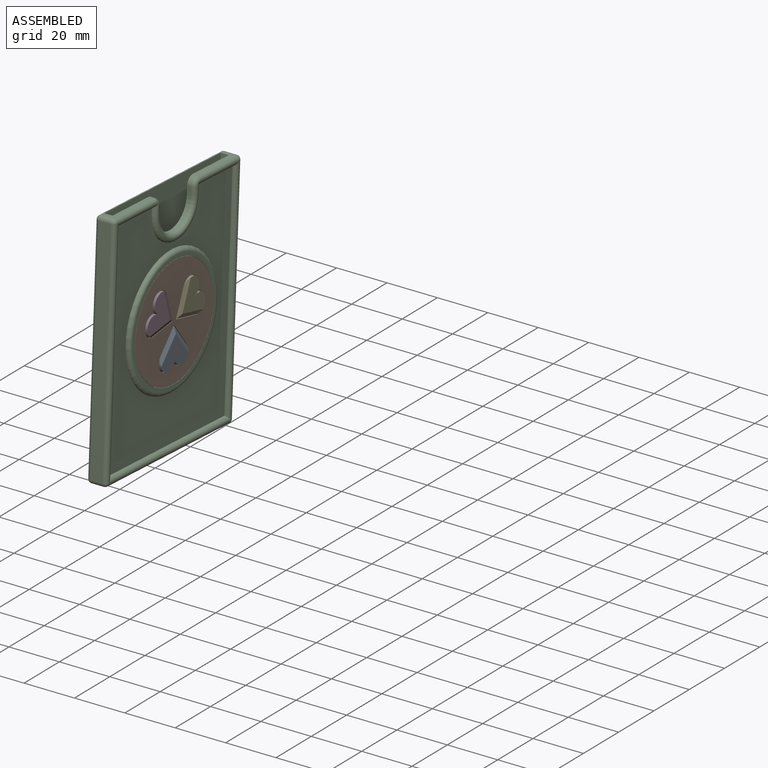
[diagram: assembled view]
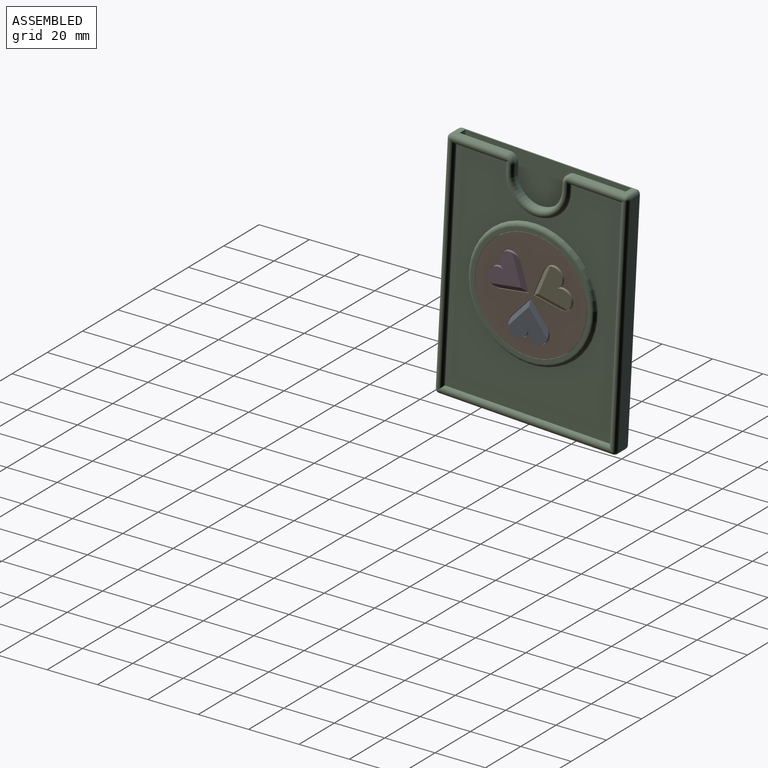
[diagram: assembled view, second angle]
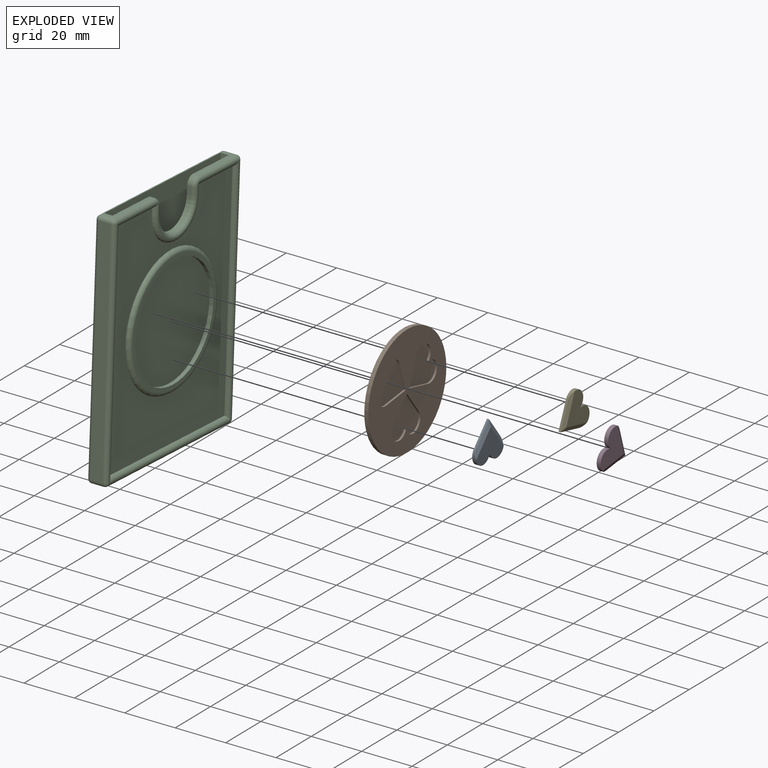
[diagram: exploded view]
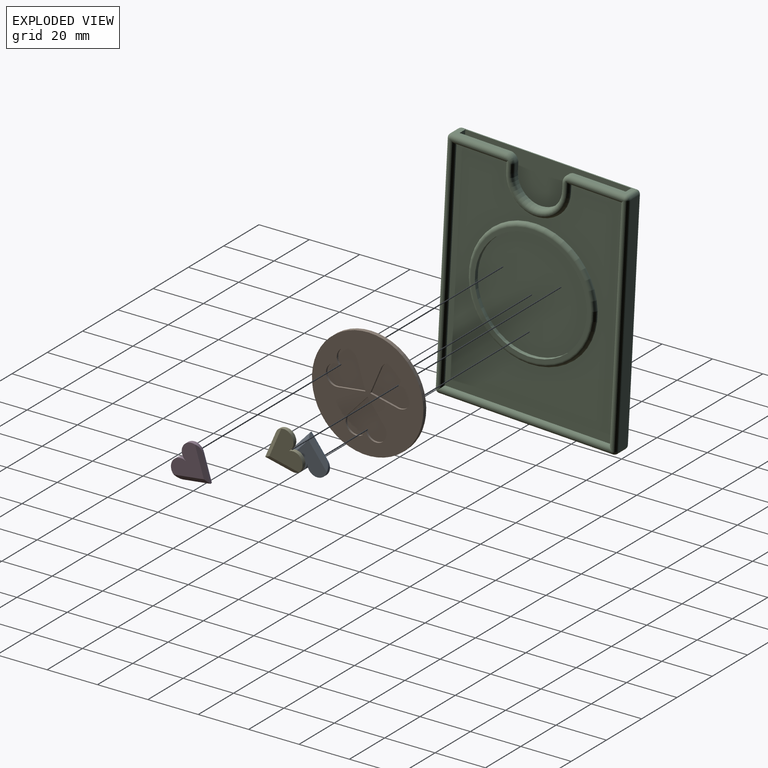
[diagram: exploded view, second angle]
ASSEMBLY  parts=5 mates=4
PART A: 8 faces, bbox 15.8x14.8x1.6 mm
  f0: plane 8.29x6.95mm, normal (-0.77,-0.64,0), area 8.6mm2, adj f1,f3,f5,f7
  f1: plane 8.29x6.95mm, normal (0.77,-0.64,0), area 8.6mm2, adj f0,f2,f5,f6
  f2: cylinder r=3.94mm len=7.88mm, axis (0,0,-1), area 21.7mm2, adj f1,f3,f4,f5,f6
  f3: cylinder r=3.94mm len=7.88mm, axis (0,0,-1), area 21.7mm2, adj f0,f2,f4,f5,f7
  f4: plane 15.54x12.3mm, normal (0,0,1), area 106.5mm2, adj f2,f3,f6,f7
  f5: plane 15.75x14.77mm, normal (0,0,-1), area 144.9mm2, adj f0,f1,f2,f3
  f6: plane 11.73x7.88mm, normal (0.34,-0.29,0.89), area 21.4mm2, adj f1,f2,f4,f7
  f7: plane 11.73x7.88mm, normal (-0.34,-0.29,0.89), area 21.4mm2, adj f0,f3,f4,f6
PART B: 18 faces, bbox 44.2x44.2x1.6 mm
  f0: plane 8.47x7.11mm, normal (-0.77,0.64,0), area 8.8mm2, adj f1,f12,f13,f15
  f1: plane 8.47x7.11mm, normal (0.77,0.64,0), area 8.8mm2, adj f0,f2,f13,f15
  f2: cylinder r=4.15mm len=8.08mm, axis (0,0,-1), area 11.6mm2, adj f1,f12,f13,f15
  f3: plane 10.89x1.92mm, normal (-0.17,-0.98,0), area 8.8mm2, adj f4,f9,f13,f17
  f4: plane 10.39x3.78mm, normal (-0.94,0.34,0), area 8.8mm2, adj f3,f5,f13,f17
  f5: cylinder r=4.15mm len=8.04mm, axis (0,0,-1), area 11.6mm2, adj f4,f9,f13,f17
  f6: plane 10.39x3.78mm, normal (0.94,0.34,0), area 8.8mm2, adj f7,f10,f13,f16
  f7: plane 10.89x1.92mm, normal (0.17,-0.98,0), area 8.8mm2, adj f6,f8,f13,f16
  f8: cylinder r=4.15mm len=8.29mm, axis (0,0,-1), area 11.6mm2, adj f7,f10,f13,f16
  f9: cylinder r=4.15mm len=8.29mm, axis (0,0,-1), area 11.6mm2, adj f3,f5,f13,f17
  f10: cylinder r=4.15mm len=8.04mm, axis (0,0,-1), area 11.6mm2, adj f6,f8,f13,f16
  f11: cylinder r=22.12mm len=44.25mm, axis (0,0,-1), area 220.7mm2, adj f13,f14
  f12: cylinder r=4.15mm len=8.08mm, axis (0,0,-1), area 11.6mm2, adj f0,f2,f13,f15
  f13: plane 44.25x44.25mm, normal (0,0,1), area 1071.7mm2, adj f0,f1,f2,f3,f4,f5,f6,f7
  f14: plane 44.25x44.25mm, normal (0,0,-1), area 1537.6mm2, adj f11
  f15: plane 16.16x15.28mm, normal (0,0,1), area 155.3mm2, adj f0,f1,f2,f12
  f16: plane 15.76x15.11mm, normal (0,0,1), area 155.3mm2, adj f6,f7,f8,f10
  f17: plane 15.76x15.11mm, normal (0,0,1), area 155.3mm2, adj f3,f4,f5,f9
PART C: 55 faces, bbox 72.3x7.9x94.8 mm
  f0: plane 91.37x65.96mm, normal (0,1,0), area 5744.7mm2, adj f1,f6,f7,f9,f11,f12,f13,f14
  f1: plane 21.87x4.76mm, normal (0,0,1), area 39.8mm2, adj f0,f7,f14,f16,f25,f42
  f2: plane 88.2x65.96mm, normal (0,-1,0), area 3456.9mm2, adj f24,f25,f27,f29,f31,f32,f35,f36
  f3: cylinder r=22.23mm len=44.45mm, axis (0,1,0), area 221.7mm2, adj f4,f5
  f4: plane 47.63x47.63mm, normal (0,-1,0), area 229.6mm2, adj f3,f24
  f5: plane 44.45x44.45mm, normal (0,-1,0), area 1551.8mm2, adj f3
  f6: plane 65.96x3.18mm, normal (0,0,1), area 209.4mm2, adj f0,f7,f8,f9
  f7: plane 91.37x3.18mm, normal (-1,0,0), area 290.1mm2, adj f0,f1,f6,f8
  f8: plane 91.37x65.96mm, normal (0,-1,0), area 6012.5mm2, adj f6,f7,f9,f42,f47,f48,f49,f50
  f9: plane 91.37x3.18mm, normal (1,0,0), area 290.1mm2, adj f0,f6,f8,f23
  f10: plane 91.37x69.14mm, normal (0,1,0), area 6317.3mm2, adj f39,f42,f43,f46
  f11: plane 3.18x1.59mm, normal (1,0,0), area 5mm2, adj f0,f12,f15,f35
  f12: cylinder r=9.53mm len=19.05mm, axis (0,1,0), area 47.5mm2, adj f0,f11,f13,f31
  f13: plane 3.18x1.59mm, normal (-1,0,0), area 5mm2, adj f0,f12,f14,f27
  f14: cylinder r=3.17mm len=3.18mm, axis (0,1,0), area 7.9mm2, adj f0,f1,f13,f28
  f15: cylinder r=3.17mm len=3.18mm, axis (0,1,0), area 7.9mm2, adj f0,f11,f23,f38
  f16: cylinder r=1.59mm len=4.76mm, axis (0,1,0), area 11.9mm2, adj f1,f17,f26,f44
  f17: plane 91.37x4.76mm, normal (1,0,0), area 435.2mm2, adj f16,f18,f29,f46
  f18: cylinder r=1.59mm len=4.76mm, axis (0,1,0), area 11.9mm2, adj f17,f19,f30,f45
  f19: plane 69.14x4.76mm, normal (0,0,-1), area 329.3mm2, adj f18,f20,f32,f43
  f20: cylinder r=1.59mm len=4.76mm, axis (0,1,0), area 11.9mm2, adj f19,f21,f33,f41
  f21: plane 91.37x4.76mm, normal (-1,0,0), area 435.2mm2, adj f20,f22,f36,f39
  f22: cylinder r=1.59mm len=4.76mm, axis (0,1,0), area 11.9mm2, adj f21,f23,f34,f40
  f23: plane 21.87x4.76mm, normal (0,0,1), area 39.8mm2, adj f0,f9,f15,f22,f37,f42
  f24: torus R=23.81mm, axis (0,-1,0), area 388.9mm2, adj f2,f4
  f25: cylinder r=1.59mm len=23.18mm, axis (1,0,0), area 107.8mm2, adj f1,f2,f26,f27,f28,f29
  f26: sphere r=1.59mm, area 4mm2, adj f16,f25,f29
  f27: cylinder r=1.59mm len=4.49mm, axis (0,0,1), area 17.1mm2, adj f2,f13,f25,f28,f31
  f28: torus R=1.59mm, axis (0,-1,0), area 9.9mm2, adj f14,f25,f27
  f29: cylinder r=1.59mm len=91.37mm, axis (0,0,-1), area 450.7mm2, adj f2,f17,f25,f26,f30,f32
  f30: sphere r=1.59mm, area 4mm2, adj f18,f29,f32
  f31: torus R=11.11mm, axis (0,-1,0), area 174.1mm2, adj f2,f12,f27,f35
  f32: cylinder r=1.59mm len=69.14mm, axis (-1,0,0), area 339.8mm2, adj f2,f19,f29,f30,f33,f36
  f33: sphere r=1.59mm, area 4mm2, adj f20,f32,f36
  f34: sphere r=1.59mm, area 4mm2, adj f22,f36,f37
  f35: cylinder r=1.59mm len=4.49mm, axis (0,0,-1), area 17.1mm2, adj f2,f11,f31,f37,f38
  f36: cylinder r=1.59mm len=91.37mm, axis (0,0,1), area 450.7mm2, adj f2,f21,f32,f33,f34,f37
  f37: cylinder r=1.59mm len=23.18mm, axis (1,0,0), area 107.8mm2, adj f2,f23,f34,f35,f36,f38
  f38: torus R=1.59mm, axis (0,-1,0), area 9.9mm2, adj f15,f35,f37
  f39: cylinder r=1.59mm len=91.37mm, axis (0,0,-1), area 227.8mm2, adj f10,f21,f40,f41
  f40: sphere r=1.59mm, area 4mm2, adj f22,f39,f42
  f41: sphere r=1.59mm, area 4mm2, adj f20,f39,f43
  f42: cylinder r=1.59mm len=69.14mm, axis (-1,0,0), area 172.4mm2, adj f1,f8,f10,f23,f40,f44
  f43: cylinder r=1.59mm len=69.14mm, axis (1,0,0), area 172.4mm2, adj f10,f19,f41,f45
  f44: sphere r=1.59mm, area 4mm2, adj f16,f42,f46
  f45: sphere r=1.59mm, area 4mm2, adj f18,f43,f46
  f46: cylinder r=1.59mm len=91.37mm, axis (0,0,1), area 227.8mm2, adj f10,f17,f44,f45
  f47: plane 8.72x6.35mm, normal (0,0.94,0.34), area 58.9mm2, adj f0,f8,f49,f50
  f48: plane 8.72x6.35mm, normal (0,-0.94,-0.34), area 58.9mm2, adj f0,f8,f49,f50
  f49: plane 9.88x3.18mm, normal (1,0,0), area 3.7mm2, adj f0,f8,f47,f48
  f50: plane 9.88x3.18mm, normal (-1,0,0), area 3.7mm2, adj f0,f8,f47,f48
  f51: plane 8.72x6.35mm, normal (0,0.94,0.34), area 58.9mm2, adj f0,f8,f53,f54
  f52: plane 8.72x6.35mm, normal (0,-0.94,-0.34), area 58.9mm2, adj f0,f8,f53,f54
  f53: plane 9.88x3.18mm, normal (1,0,0), area 3.7mm2, adj f0,f8,f51,f52
  f54: plane 9.88x3.18mm, normal (-1,0,0), area 3.7mm2, adj f0,f8,f51,f52
PART D: 8 faces, bbox 15.3x14.7x1.6 mm
  f0: plane 10.66x1.88mm, normal (-0.17,0.98,0), area 8.6mm2, adj f1,f3,f5,f7
  f1: plane 10.17x3.7mm, normal (-0.94,-0.34,0), area 8.6mm2, adj f0,f2,f5,f6
  f2: cylinder r=3.94mm len=7.65mm, axis (0,0,-1), area 21.7mm2, adj f1,f3,f4,f5,f6
  f3: cylinder r=3.94mm len=7.89mm, axis (0,0,-1), area 21.7mm2, adj f0,f2,f4,f5,f7
  f4: plane 13.63x13.14mm, normal (0,0,1), area 106.5mm2, adj f2,f3,f6,f7
  f5: plane 15.28x14.7mm, normal (0,0,-1), area 144.9mm2, adj f0,f1,f2,f3
  f6: plane 12.6x6.27mm, normal (-0.42,-0.15,0.89), area 21.4mm2, adj f1,f2,f4,f7
  f7: plane 14.04x3.17mm, normal (-0.08,0.44,0.89), area 21.4mm2, adj f0,f3,f4,f6
PART E: 8 faces, bbox 15.3x14.7x1.6 mm
  f0: plane 10.17x3.7mm, normal (0.94,-0.34,0), area 8.6mm2, adj f1,f3,f5,f7
  f1: plane 10.66x1.88mm, normal (0.17,0.98,0), area 8.6mm2, adj f0,f2,f5,f6
  f2: cylinder r=3.94mm len=7.89mm, axis (0,0,-1), area 21.7mm2, adj f1,f3,f4,f5,f6
  f3: cylinder r=3.94mm len=7.65mm, axis (0,0,-1), area 21.7mm2, adj f0,f2,f4,f5,f7
  f4: plane 13.63x13.14mm, normal (0,0,1), area 106.5mm2, adj f2,f3,f6,f7
  f5: plane 15.28x14.7mm, normal (0,0,-1), area 144.9mm2, adj f0,f1,f2,f3
  f6: plane 14.04x3.17mm, normal (0.08,0.44,0.89), area 21.4mm2, adj f1,f2,f4,f7
  f7: plane 12.6x6.27mm, normal (0.42,-0.15,0.89), area 21.4mm2, adj f0,f3,f4,f6
PLACE A rot(axis=(-0.59,0.56,-0.59),121.7deg) t=(-17.57,-53.76,46.61)mm
PLACE B rot(axis=(-0.59,0.56,-0.59),121.7deg) t=(-18.36,-53.76,46.61)mm
PLACE C rot(axis=(-0.03,0.03,1),90deg) t=(-24.71,-53.76,46.61)mm
PLACE D rot(axis=(-0.59,0.56,-0.59),121.7deg) t=(-17.57,-53.76,46.62)mm
PLACE E rot(axis=(-0.59,0.56,-0.59),121.7deg) t=(-17.57,-53.76,46.61)mm
MATE fastened D.f5 <-> B.f16  axis (-1,0,0) through (-17.57,-62.46,52.26)mm
MATE fastened A.f5 <-> B.f15  axis (-1,0,0) through (-17.57,-54.3,36.25)mm
MATE fastened E.f5 <-> B.f17  axis (-1,0,0) through (-17.57,-44.51,51.32)mm
MATE fastened B.f11 <-> C.f3  axis (-1,0,0) through (-18.36,-53.76,46.61)mm
